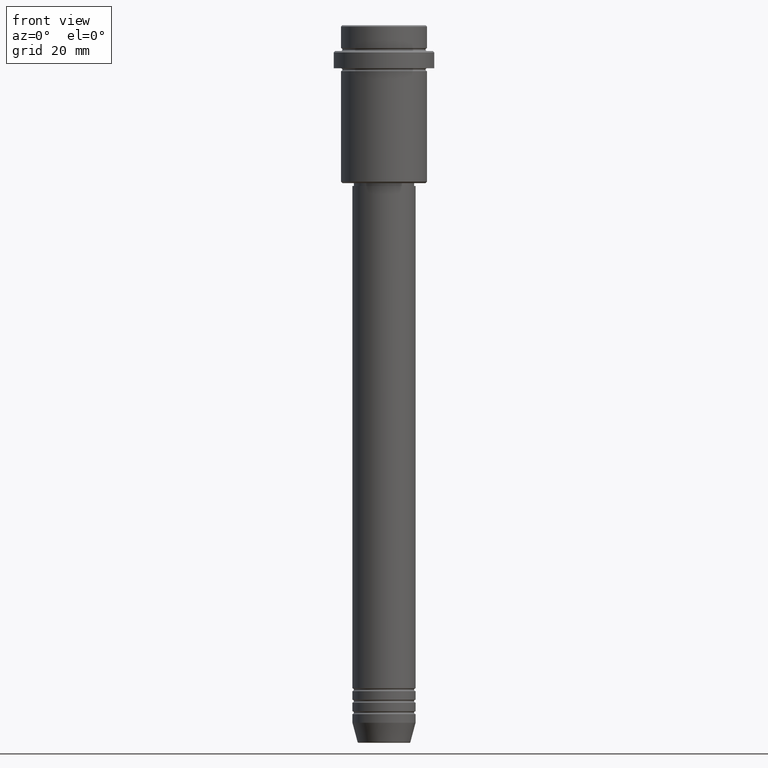
[diagram: clean part render]
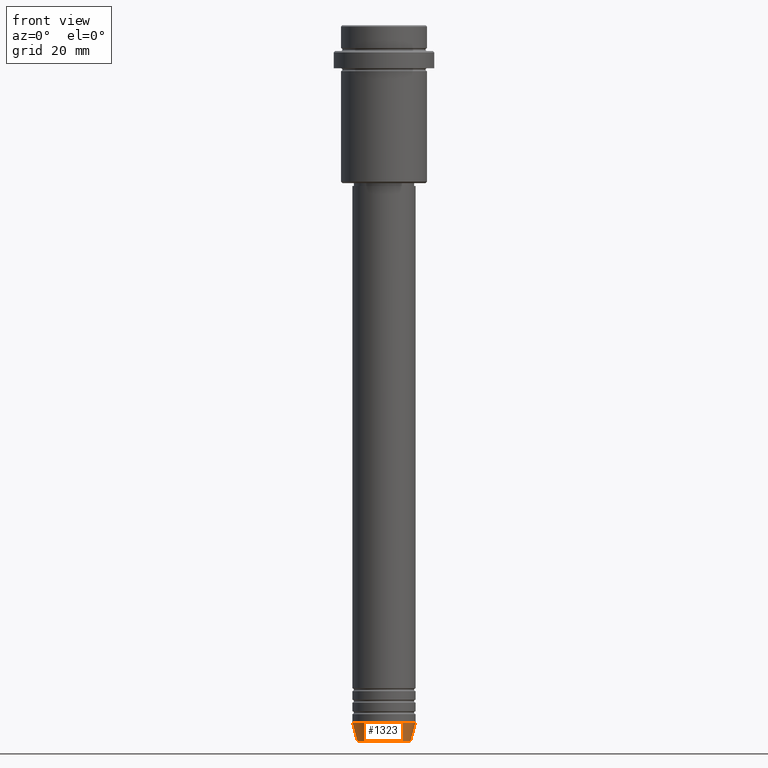
[diagram: same view with one face highlighted and labeled with its STEP entity id]
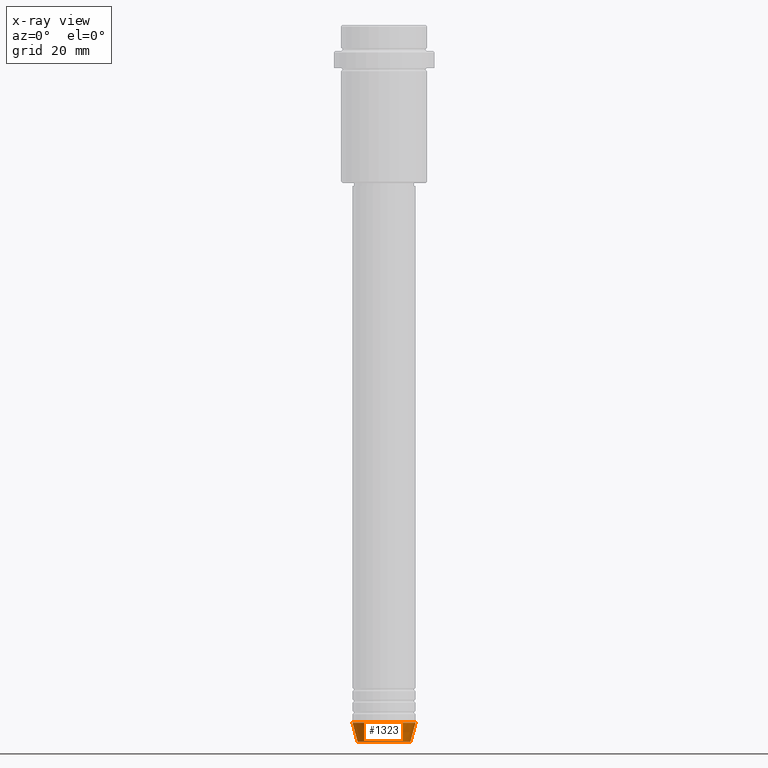
[diagram: x-ray of the same camera — body ghosted, the highlighted face saturated]
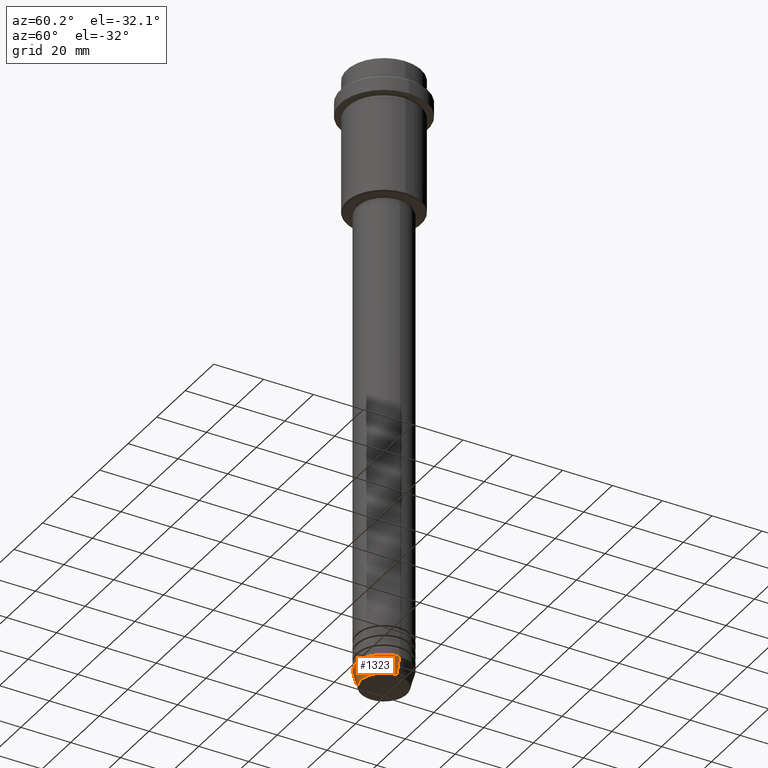
[diagram: same view with one face highlighted and labeled with its STEP entity id]
A machine part, front view. The second image highlights one B-rep face of the part: STEP entity #1323.
The next image is the same camera in x-ray: the body ghosted, the highlighted face saturated — about 0% of this face is hidden behind the body in this view.
A second angle (auxiliary view) of the same face is appended — the face is thin or edge-on in the first view.
In plain terms, the highlighted conical surface has half-angle 15 deg.
Its self-contained STEP definition (entity closure, byte-faithful):
#80 = DIRECTION ( 'NONE',  ( 1.000000000000000000, 0.000000000000000000, 0.000000000000000000 ) ) ;
#81 = VERTEX_POINT ( 'NONE', #543 ) ;
#115 = EDGE_CURVE ( 'NONE', #1340, #81, #1310, .T. ) ;
#125 = DIRECTION ( 'NONE',  ( 0.2588190451025213501, 0.000000000000000000, 0.9659258262890680902 ) ) ;
#173 = CARTESIAN_POINT ( 'NONE',  ( -11.00000000000000000, 1.347111479062088405E-15, -243.0000000000000000 ) ) ;
#229 = DIRECTION ( 'NONE',  ( -0.000000000000000000, -0.000000000000000000, 1.000000000000000000 ) ) ;
#306 = CARTESIAN_POINT ( 'NONE',  ( 0.000000000000000000, 0.000000000000000000, -243.0000000000000000 ) ) ;
#311 = CARTESIAN_POINT ( 'NONE',  ( -9.223655072137189492, 1.238341722557647202E-15, -249.6294095225512422 ) ) ;
#313 = CARTESIAN_POINT ( 'NONE',  ( -11.00000000000000000, 1.347111479062088405E-15, -243.0000000000000000 ) ) ;
#314 = EDGE_CURVE ( 'NONE', #1225, #1133, #1171, .T. ) ;
#343 = CONICAL_SURFACE ( 'NONE', #753, 11.00000000000000000, 0.2617993877991500740 ) ;
#369 = AXIS2_PLACEMENT_3D ( 'NONE', #536, #862, #1324 ) ;
#411 = FACE_OUTER_BOUND ( 'NONE', #698, .T. ) ;
#454 = ORIENTED_EDGE ( 'NONE', *, *, #115, .T. ) ;
#535 = EDGE_CURVE ( 'NONE', #1225, #1340, #828, .T. ) ;
#536 = CARTESIAN_POINT ( 'NONE',  ( 0.000000000000000000, 0.000000000000000000, -249.6294095225512422 ) ) ;
#543 = CARTESIAN_POINT ( 'NONE',  ( 11.00000000000000000, 0.000000000000000000, -243.0000000000000000 ) ) ;
#605 = CIRCLE ( 'NONE', #1293, 11.00000000000000000 ) ;
#619 = ORIENTED_EDGE ( 'NONE', *, *, #1356, .F. ) ;
#640 = DIRECTION ( 'NONE',  ( -0.000000000000000000, -0.000000000000000000, 1.000000000000000000 ) ) ;
#675 = CARTESIAN_POINT ( 'NONE',  ( 0.000000000000000000, 0.000000000000000000, -243.0000000000000000 ) ) ;
#682 = DIRECTION ( 'NONE',  ( 1.000000000000000000, 0.000000000000000000, 0.000000000000000000 ) ) ;
#698 = EDGE_LOOP ( 'NONE', ( #1112, #1386, #454, #619 ) ) ;
#753 = AXIS2_PLACEMENT_3D ( 'NONE', #306, #640, #80 ) ;
#798 = VECTOR ( 'NONE', #1166, 1000.000000000000000 ) ;
#828 = CIRCLE ( 'NONE', #369, 9.223655072137189492 ) ;
#862 = DIRECTION ( 'NONE',  ( -0.000000000000000000, -0.000000000000000000, 1.000000000000000000 ) ) ;
#1112 = ORIENTED_EDGE ( 'NONE', *, *, #314, .F. ) ;
#1133 = VERTEX_POINT ( 'NONE', #173 ) ;
#1166 = DIRECTION ( 'NONE',  ( -0.2588190451025213501, 3.169619151431772337E-17, 0.9659258262890680902 ) ) ;
#1171 = LINE ( 'NONE', #313, #798 ) ;
#1191 = CARTESIAN_POINT ( 'NONE',  ( 11.00000000000000000, 0.000000000000000000, -243.0000000000000000 ) ) ;
#1219 = CARTESIAN_POINT ( 'NONE',  ( 9.223655072137189492, 0.000000000000000000, -249.6294095225512422 ) ) ;
#1225 = VERTEX_POINT ( 'NONE', #311 ) ;
#1272 = VECTOR ( 'NONE', #125, 1000.000000000000000 ) ;
#1293 = AXIS2_PLACEMENT_3D ( 'NONE', #675, #229, #682 ) ;
#1310 = LINE ( 'NONE', #1191, #1272 ) ;
#1323 = ADVANCED_FACE ( 'NONE', ( #411 ), #343, .T. ) ;
#1324 = DIRECTION ( 'NONE',  ( 1.000000000000000000, 0.000000000000000000, 0.000000000000000000 ) ) ;
#1340 = VERTEX_POINT ( 'NONE', #1219 ) ;
#1356 = EDGE_CURVE ( 'NONE', #1133, #81, #605, .T. ) ;
#1386 = ORIENTED_EDGE ( 'NONE', *, *, #535, .T. ) ;